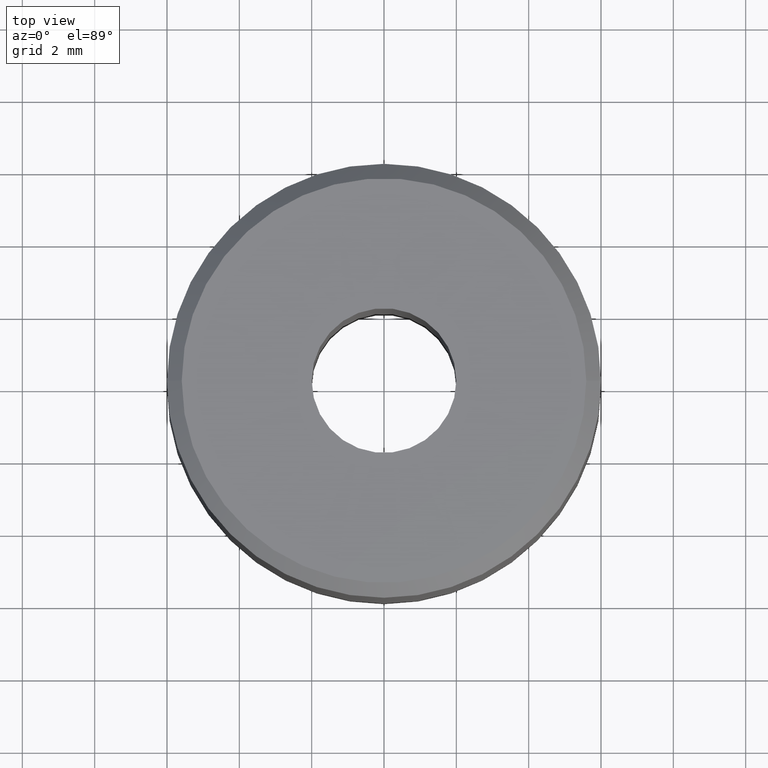
[diagram: clean part render]
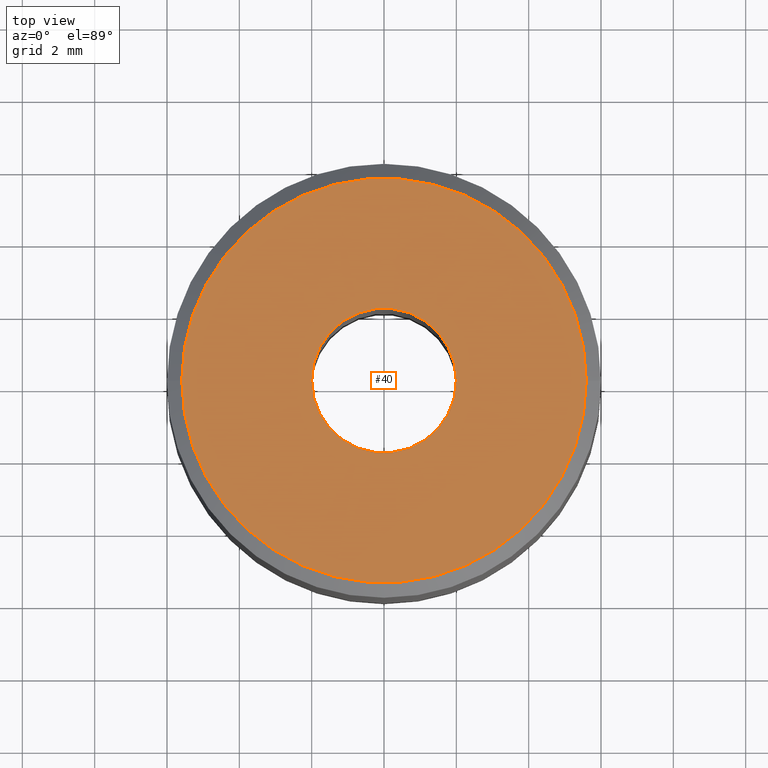
[diagram: same view with one face highlighted and labeled with its STEP entity id]
A machine part, top view. The second image highlights one B-rep face of the part: STEP entity #40.
In plain terms, the highlighted planar face has unit normal (0, 0, -1).
Its self-contained STEP definition (entity closure, byte-faithful):
#12 = DIRECTION ( 'NONE',  ( -0.0000000000000000000, -0.0000000000000000000, 1.000000000000000000 ) ) ;
#16 = CIRCLE ( 'NONE', #332, 5.592592592592525900 ) ;
#17 = DIRECTION ( 'NONE',  ( 1.000000000000000000, 0.0000000000000000000, 0.0000000000000000000 ) ) ;
#18 = CARTESIAN_POINT ( 'NONE',  ( 0.0000000000000000000, 5.311472910980680100E-015, 11.00000000000022400 ) ) ;
#40 = ADVANCED_FACE ( 'NONE', ( #116, #331 ), #146, .F. ) ;
#63 = EDGE_CURVE ( 'NONE', #148, #198, #188, .T. ) ;
#77 = DIRECTION ( 'NONE',  ( -0.0000000000000000000, -0.0000000000000000000, 1.000000000000000000 ) ) ;
#82 = EDGE_CURVE ( 'NONE', #198, #148, #257, .T. ) ;
#96 = CARTESIAN_POINT ( 'NONE',  ( 1.999999999999957100, 0.1111111111113758500, 11.00000000000022600 ) ) ;
#99 = EDGE_CURVE ( 'NONE', #105, #114, #236, .T. ) ;
#105 = VERTEX_POINT ( 'NONE', #186 ) ;
#111 = EDGE_LOOP ( 'NONE', ( #241, #279 ) ) ;
#114 = VERTEX_POINT ( 'NONE', #150 ) ;
#116 = FACE_BOUND ( 'NONE', #111, .T. ) ;
#118 = ORIENTED_EDGE ( 'NONE', *, *, #99, .T. ) ;
#124 = DIRECTION ( 'NONE',  ( 1.000000000000000000, 0.0000000000000000000, 0.0000000000000000000 ) ) ;
#130 = CARTESIAN_POINT ( 'NONE',  ( 0.0000000000000000000, 0.1111111111113758500, 11.00000000000022200 ) ) ;
#143 = EDGE_CURVE ( 'NONE', #114, #105, #16, .T. ) ;
#146 = PLANE ( 'NONE',  #210 ) ;
#148 = VERTEX_POINT ( 'NONE', #183 ) ;
#150 = CARTESIAN_POINT ( 'NONE',  ( 5.592592592592525900, 0.1111111111113765600, 11.00000000000022200 ) ) ;
#151 = CARTESIAN_POINT ( 'NONE',  ( 0.0000000000000000000, 0.1111111111113758500, 11.00000000000022200 ) ) ;
#155 = DIRECTION ( 'NONE',  ( 1.000000000000000000, 0.0000000000000000000, 0.0000000000000000000 ) ) ;
#156 = EDGE_LOOP ( 'NONE', ( #118, #208 ) ) ;
#183 = CARTESIAN_POINT ( 'NONE',  ( -1.999999999999957100, 0.1111111111113761000, 11.00000000000022600 ) ) ;
#186 = CARTESIAN_POINT ( 'NONE',  ( -5.592592592592525900, 0.1111111111113758500, 11.00000000000022200 ) ) ;
#188 = CIRCLE ( 'NONE', #189, 1.999999999999957100 ) ;
#189 = AXIS2_PLACEMENT_3D ( 'NONE', #313, #211, #124 ) ;
#198 = VERTEX_POINT ( 'NONE', #96 ) ;
#208 = ORIENTED_EDGE ( 'NONE', *, *, #143, .T. ) ;
#210 = AXIS2_PLACEMENT_3D ( 'NONE', #18, #341, #258 ) ;
#211 = DIRECTION ( 'NONE',  ( -0.0000000000000000000, -0.0000000000000000000, 1.000000000000000000 ) ) ;
#215 = DIRECTION ( 'NONE',  ( -0.0000000000000000000, -0.0000000000000000000, 1.000000000000000000 ) ) ;
#236 = CIRCLE ( 'NONE', #259, 5.592592592592525900 ) ;
#241 = ORIENTED_EDGE ( 'NONE', *, *, #82, .F. ) ;
#242 = AXIS2_PLACEMENT_3D ( 'NONE', #260, #12, #317 ) ;
#257 = CIRCLE ( 'NONE', #242, 1.999999999999957100 ) ;
#258 = DIRECTION ( 'NONE',  ( -1.000000000000000000, 0.0000000000000000000, -0.0000000000000000000 ) ) ;
#259 = AXIS2_PLACEMENT_3D ( 'NONE', #130, #215, #155 ) ;
#260 = CARTESIAN_POINT ( 'NONE',  ( 0.0000000000000000000, 0.1111111111113758500, 11.00000000000022600 ) ) ;
#279 = ORIENTED_EDGE ( 'NONE', *, *, #63, .F. ) ;
#313 = CARTESIAN_POINT ( 'NONE',  ( 0.0000000000000000000, 0.1111111111113758500, 11.00000000000022600 ) ) ;
#317 = DIRECTION ( 'NONE',  ( 1.000000000000000000, 0.0000000000000000000, 0.0000000000000000000 ) ) ;
#331 = FACE_OUTER_BOUND ( 'NONE', #156, .T. ) ;
#332 = AXIS2_PLACEMENT_3D ( 'NONE', #151, #77, #17 ) ;
#341 = DIRECTION ( 'NONE',  ( 0.0000000000000000000, 0.0000000000000000000, -1.000000000000000000 ) ) ;